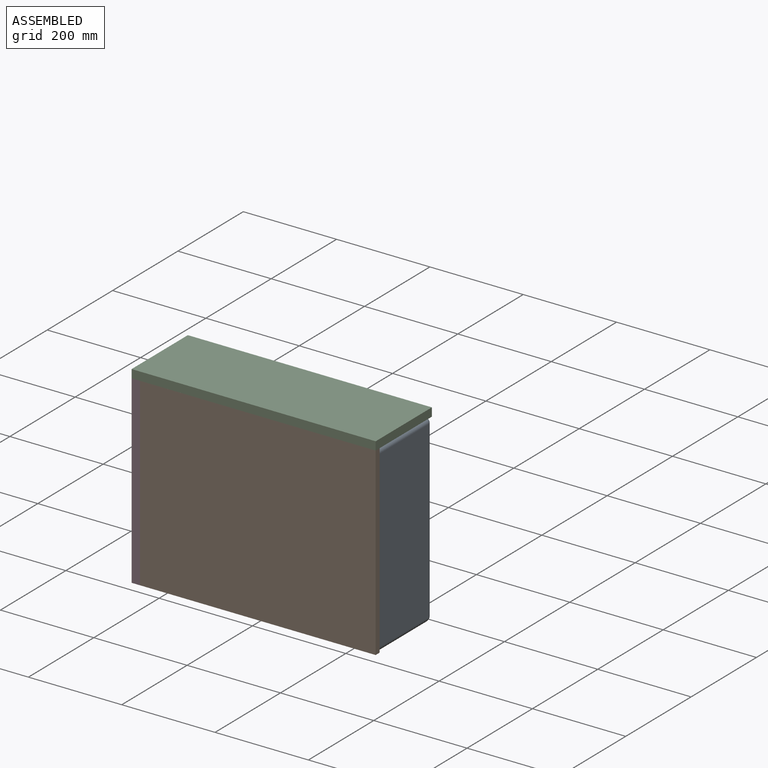
[diagram: assembled view]
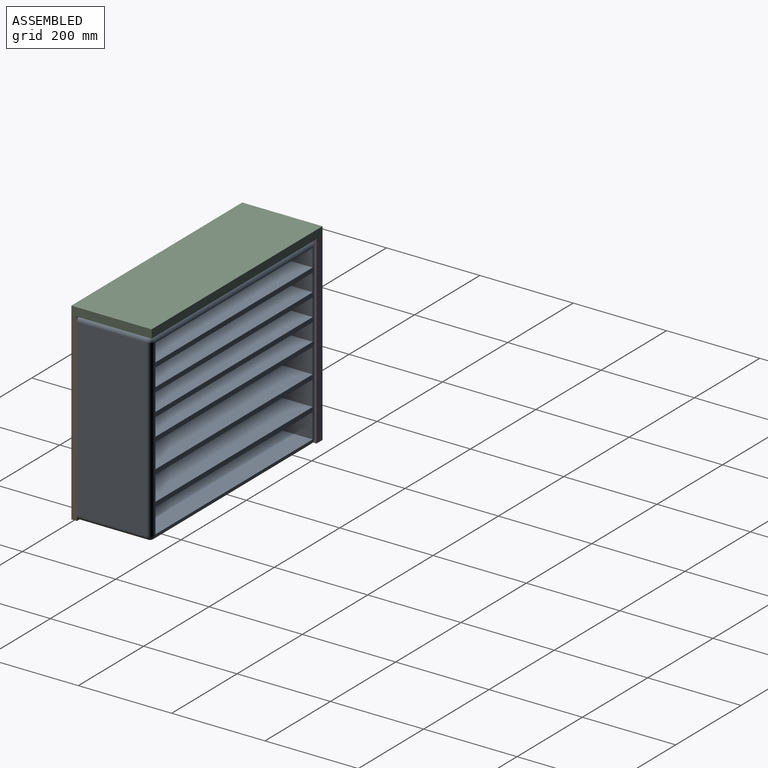
[diagram: assembled view, second angle]
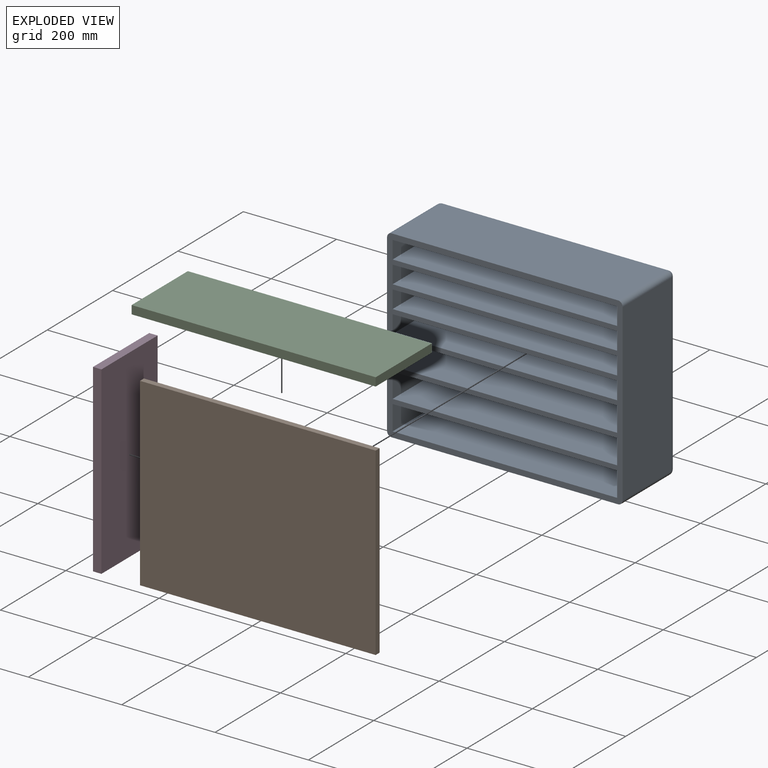
[diagram: exploded view]
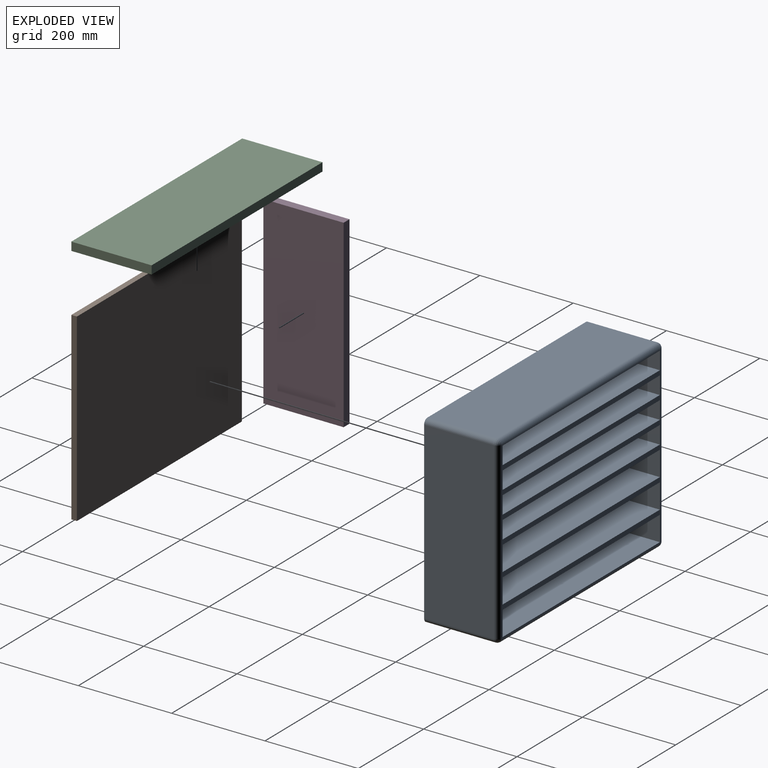
[diagram: exploded view, second angle]
ASSEMBLY  parts=4 mates=3
PART A: 46 faces, bbox 505x160x395 mm
  f0: plane 485x150mm, normal (0,0,1), area 72750mm2, adj f33,f34,f37,f40
  f1: plane 375x150mm, normal (-1,0,0), area 56250mm2, adj f33,f34,f35,f39
  f2: plane 485x150mm, normal (0,0,-1), area 72750mm2, adj f33,f35,f36,f43
  f3: plane 160x38mm, normal (1,0,0), area 6080mm2, adj f4,f24,f32,f33
  f4: plane 481x160mm, normal (0,0,-1), area 76960mm2, adj f3,f5,f32,f33
  f5: plane 160x38mm, normal (-1,0,0), area 6080mm2, adj f4,f24,f32,f33
  f6: plane 160x38mm, normal (1,0,0), area 6080mm2, adj f7,f25,f32,f33
  f7: plane 481x160mm, normal (0,0,-1), area 76960mm2, adj f6,f8,f32,f33
  f8: plane 160x38mm, normal (-1,0,0), area 6080mm2, adj f7,f25,f32,f33
  f9: plane 160x38mm, normal (1,0,0), area 6080mm2, adj f10,f26,f32,f33
  f10: plane 481x160mm, normal (0,0,-1), area 76960mm2, adj f9,f11,f32,f33
  f11: plane 160x38mm, normal (-1,0,0), area 6080mm2, adj f10,f26,f32,f33
  f12: plane 160x38mm, normal (1,0,0), area 6080mm2, adj f13,f27,f32,f33
  f13: plane 481x160mm, normal (0,0,-1), area 76960mm2, adj f12,f14,f32,f33
  f14: plane 160x38mm, normal (-1,0,0), area 6080mm2, adj f13,f27,f32,f33
  f15: plane 160x53mm, normal (1,0,0), area 8480mm2, adj f16,f28,f32,f33
  f16: plane 481x160mm, normal (0,0,-1), area 76960mm2, adj f15,f17,f32,f33
  f17: plane 160x53mm, normal (-1,0,0), area 8480mm2, adj f16,f28,f32,f33
  f18: plane 160x53mm, normal (1,0,0), area 8480mm2, adj f19,f29,f32,f33
  f19: plane 481x160mm, normal (0,0,-1), area 76960mm2, adj f18,f20,f32,f33
  f20: plane 160x53mm, normal (-1,0,0), area 8480mm2, adj f19,f29,f32,f33
  f21: plane 160x53mm, normal (1,0,0), area 8480mm2, adj f22,f30,f32,f33
  f22: plane 481x160mm, normal (0,0,-1), area 76960mm2, adj f21,f23,f32,f33
  f23: plane 160x53mm, normal (-1,0,0), area 8480mm2, adj f22,f30,f32,f33
  f24: plane 481x160mm, normal (0,0,1), area 76960mm2, adj f3,f5,f32,f33
  f25: plane 481x160mm, normal (0,0,1), area 76960mm2, adj f6,f8,f32,f33
  f26: plane 481x160mm, normal (0,0,1), area 76960mm2, adj f9,f11,f32,f33
  f27: plane 481x160mm, normal (0,0,1), area 76960mm2, adj f12,f14,f32,f33
  f28: plane 481x160mm, normal (0,0,1), area 76960mm2, adj f15,f17,f32,f33
  f29: plane 481x160mm, normal (0,0,1), area 76960mm2, adj f18,f20,f32,f33
  f30: plane 481x160mm, normal (0,0,1), area 76960mm2, adj f21,f23,f32,f33
  f31: plane 375x150mm, normal (1,0,0), area 56250mm2, adj f33,f36,f37,f44
  f32: plane 485x375mm, normal (0,-1,0), area 32284mm2, adj f3,f4,f5,f6,f7,f8,f9,f10
  f33: plane 505x395mm, normal (0,1,0), area 49798.2mm2, adj f0,f1,f2,f3,f4,f5,f6,f7
  f34: cylinder r=10mm len=150mm, axis (0,-1,0), area 2356.2mm2, adj f0,f1,f33,f38
  f35: cylinder r=10mm len=150mm, axis (0,1,0), area 2356.2mm2, adj f1,f2,f33,f41
  f36: cylinder r=10mm len=150mm, axis (0,-1,0), area 2356.2mm2, adj f2,f31,f33,f45
  f37: cylinder r=10mm len=150mm, axis (0,1,0), area 2356.2mm2, adj f0,f31,f33,f42
  f38: sphere r=10mm, area 157.1mm2, adj f34,f39,f40
  f39: cylinder r=10mm len=375mm, axis (0,0,1), area 5890.5mm2, adj f1,f32,f38,f41
  f40: cylinder r=10mm len=485mm, axis (1,0,0), area 7618.4mm2, adj f0,f32,f38,f42
  f41: sphere r=10mm, area 157.1mm2, adj f35,f39,f43
  f42: sphere r=10mm, area 157.1mm2, adj f37,f40,f44
  f43: cylinder r=10mm len=485mm, axis (-1,0,0), area 7618.4mm2, adj f2,f32,f41,f45
  f44: cylinder r=10mm len=375mm, axis (0,0,-1), area 5890.5mm2, adj f31,f32,f42,f45
  f45: sphere r=10mm, area 157.1mm2, adj f36,f43,f44
PART B: 6 faces, bbox 505x12x396 mm
  f0: plane 505x12mm, normal (0,0,1), area 6060mm2, adj f1,f3,f4,f5
  f1: plane 396x12mm, normal (-1,0,0), area 4752mm2, adj f0,f2,f4,f5
  f2: plane 505x12mm, normal (0,0,-1), area 6060mm2, adj f1,f3,f4,f5
  f3: plane 396x12mm, normal (1,0,0), area 4752mm2, adj f0,f2,f4,f5
  f4: plane 505x396mm, normal (0,-1,0), area 199980mm2, adj f0,f1,f2,f3
  f5: plane 505x396mm, normal (0,1,0), area 199980mm2, adj f0,f1,f2,f3
PART C: 6 faces, bbox 523x172x18 mm
  f0: plane 523x18mm, normal (0,1,0), area 9414mm2, adj f1,f3,f4,f5
  f1: plane 172x18mm, normal (-1,0,0), area 3096mm2, adj f0,f2,f4,f5
  f2: plane 523x18mm, normal (0,-1,0), area 9414mm2, adj f1,f3,f4,f5
  f3: plane 172x18mm, normal (1,0,0), area 3096mm2, adj f0,f2,f4,f5
  f4: plane 523x172mm, normal (0,0,1), area 89956mm2, adj f0,f1,f2,f3
  f5: plane 523x172mm, normal (0,0,-1), area 89956mm2, adj f0,f1,f2,f3
PART D: 6 faces, bbox 18x172x396 mm
  f0: plane 172x18mm, normal (0,0,1), area 3096mm2, adj f1,f3,f4,f5
  f1: plane 396x18mm, normal (0,-1,0), area 7128mm2, adj f0,f2,f4,f5
  f2: plane 172x18mm, normal (0,0,-1), area 3096mm2, adj f1,f3,f4,f5
  f3: plane 396x18mm, normal (0,1,0), area 7128mm2, adj f0,f2,f4,f5
  f4: plane 396x172mm, normal (1,0,0), area 68112mm2, adj f0,f1,f2,f3
  f5: plane 396x172mm, normal (-1,0,0), area 68112mm2, adj f0,f1,f2,f3
PLACE A rot(axis=(0,0,1),180deg) t=(-192.98,98.59,182.11)mm
PLACE B t=(-192.98,12.59,182.11)mm
PLACE C t=(-201.98,92.59,389.11)mm
PLACE D t=(-454.48,92.59,179.46)mm
MATE fastened D.f0 <-> C.f5  axis (0,0,1) through (-463.48,6.59,380.11)mm
MATE fastened A.f33 <-> B.f5  axis (0,-1,0) through (59.52,18.59,182.11)mm
MATE fastened D.f4 <-> B.f1  axis (1,0,0) through (-445.48,6.59,182.11)mm
